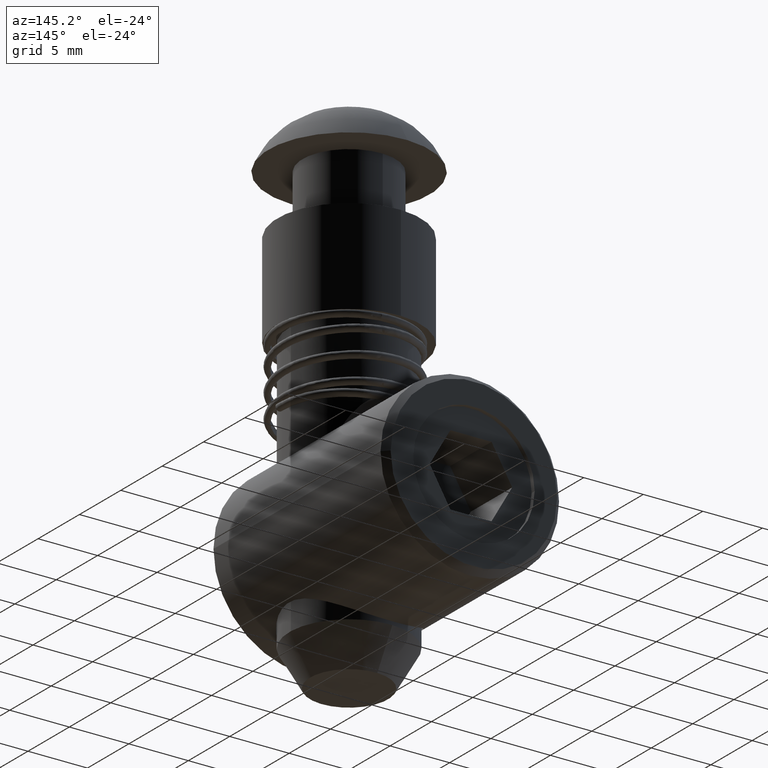
[diagram: clean part render]
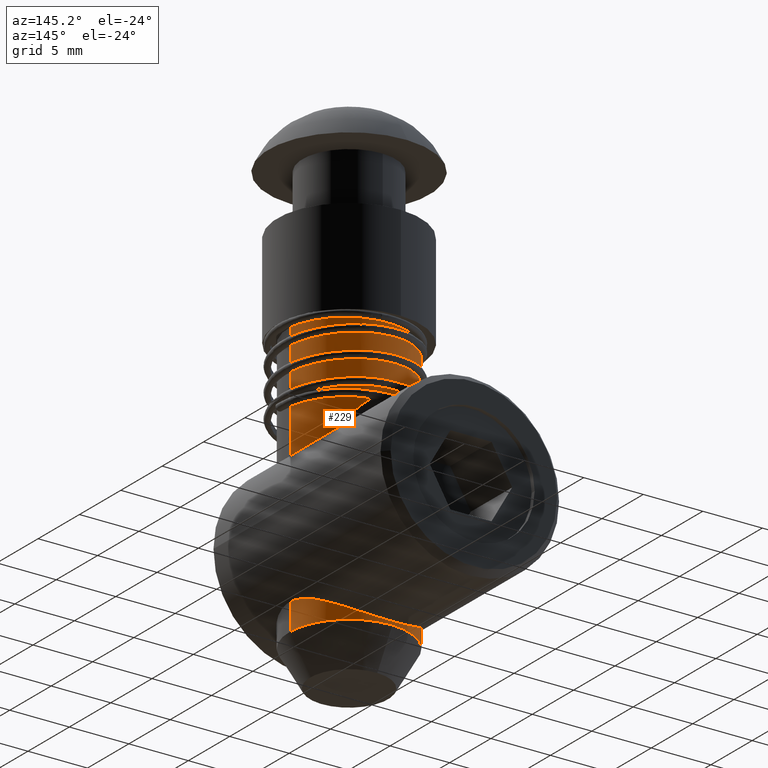
[diagram: same view with one face highlighted and labeled with its STEP entity id]
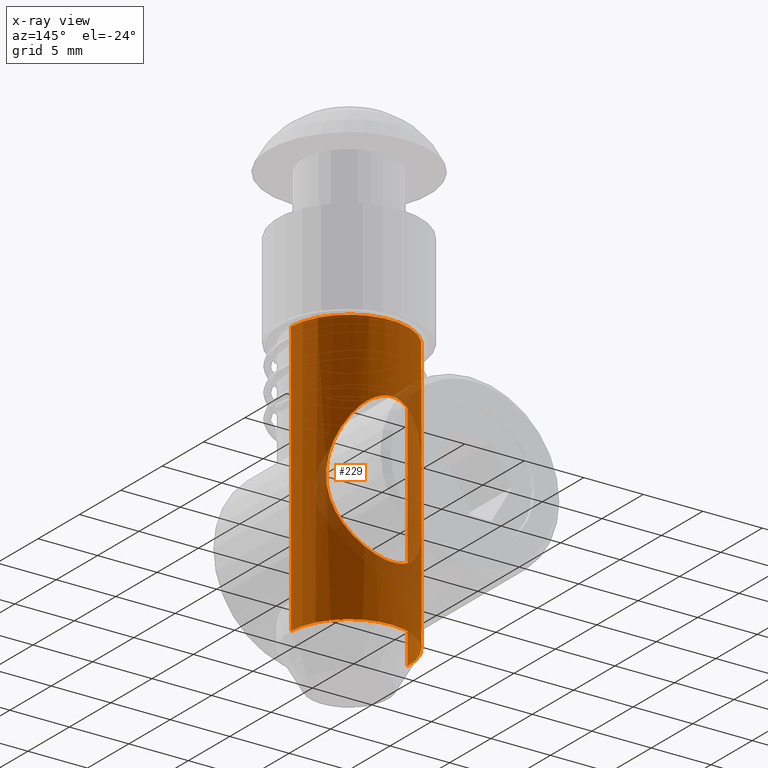
[diagram: x-ray of the same camera — body ghosted, the highlighted face saturated]
A machine part, auxiliary view. The second image highlights one B-rep face of the part: STEP entity #229.
The next image is the same camera in x-ray: the body ghosted, the highlighted face saturated — about 18% of this face is hidden behind the body in this view.
In plain terms, the highlighted cylindrical surface (partial cylindrical patch) has radius 5 mm, axis along (-0, -0, -1).
Its self-contained STEP definition (entity closure, byte-faithful):
#229 = ADVANCED_FACE ( 'NONE', ( #3277, #3279 ), #3280, .T. ) ;
#269 = VERTEX_POINT ( 'NONE', #1075 ) ;
#271 = VERTEX_POINT ( 'NONE', #1077 ) ;
#365 = AXIS2_PLACEMENT_3D ( 'NONE', #461, #462, #463 ) ;
#421 = AXIS2_PLACEMENT_3D ( 'NONE', #1566, #1567, #1568 ) ;
#422 = AXIS2_PLACEMENT_3D ( 'NONE', #1571, #1572, #1573 ) ;
#423 = AXIS2_PLACEMENT_3D ( 'NONE', #1574, #1575, #1576 ) ;
#461 = CARTESIAN_POINT ( 'NONE',  ( 0.0000000000000000000, 0.0000000000000000000, -26.00000000000000400 ) ) ;
#462 = DIRECTION ( 'NONE',  ( 0.0000000000000000000, -3.469446951953614700E-016, 1.000000000000000000 ) ) ;
#463 = DIRECTION ( 'NONE',  ( 0.0000000000000000000, -1.000000000000000000, -6.938893903907228400E-016 ) ) ;
#1075 = CARTESIAN_POINT ( 'NONE',  ( 5.000000000000000000, 7.654042494670978300E-016, -7.750000000000000000 ) ) ;
#1077 = CARTESIAN_POINT ( 'NONE',  ( 5.000000000000000000, -7.068193710780265800E-025, -20.25000000000000000 ) ) ;
#1475 = CARTESIAN_POINT ( 'NONE',  ( 5.000000000000000000, 7.654042494670978300E-016, -7.750000000000000000 ) ) ;
#1476 = CARTESIAN_POINT ( 'NONE',  ( 4.999999999780595900, -0.1813539256800255400, -7.750000000092724900 ) ) ;
#1477 = CARTESIAN_POINT ( 'NONE',  ( 4.990176536131771800, -0.3587323774636953000, -7.767656787208031800 ) ) ;
#1478 = CARTESIAN_POINT ( 'NONE',  ( 4.952944911914106500, -0.7063196726305970300, -7.834886396920044400 ) ) ;
#1479 = CARTESIAN_POINT ( 'NONE',  ( 4.925180646177419200, -0.8780284513163030300, -7.885109100457018600 ) ) ;
#1480 = CARTESIAN_POINT ( 'NONE',  ( 4.854971580522522400, -1.207306635084960800, -8.013092839405493000 ) ) ;
#1481 = CARTESIAN_POINT ( 'NONE',  ( 4.813071113253514900, -1.363365291101220200, -8.089866630655743400 ) ) ;
#1482 = CARTESIAN_POINT ( 'NONE',  ( 4.718543218857944600, -1.661255052658880100, -8.264901932709669600 ) ) ;
#1483 = CARTESIAN_POINT ( 'NONE',  ( 4.665497853343810100, -1.803884597647247100, -8.363960054311487400 ) ) ;
#1484 = CARTESIAN_POINT ( 'NONE',  ( 4.497595939086833600, -2.203431463297254900, -8.681816748362253500 ) ) ;
#1485 = CARTESIAN_POINT ( 'NONE',  ( 4.373615862092759000, -2.435431558020108700, -8.921763902899186900 ) ) ;
#1486 = CARTESIAN_POINT ( 'NONE',  ( 4.114987312465123300, -2.850740605737519300, -9.444660250977134900 ) ) ;
#1487 = CARTESIAN_POINT ( 'NONE',  ( 3.981295432993053200, -3.031591595720544600, -9.725847177536822500 ) ) ;
#1488 = CARTESIAN_POINT ( 'NONE',  ( 3.722260910837521300, -3.344552980544008000, -10.30814112247822000 ) ) ;
#1489 = CARTESIAN_POINT ( 'NONE',  ( 3.595708543822220700, -3.478218326949175800, -10.61150988995218100 ) ) ;
#1493 = CARTESIAN_POINT ( 'NONE',  ( 3.359032755661645700, -3.707293029750056100, -11.24352797974041000 ) ) ;
#1494 = CARTESIAN_POINT ( 'NONE',  ( 3.248674086339969200, -3.802675491264376500, -11.57375450399950100 ) ) ;
#1495 = CARTESIAN_POINT ( 'NONE',  ( 3.063671671721330800, -3.953244249855025300, -12.24256927419087400 ) ) ;
#1496 = CARTESIAN_POINT ( 'NONE',  ( 2.988161145186147800, -4.009371323402223000, -12.58334038542380800 ) ) ;
#1497 = CARTESIAN_POINT ( 'NONE',  ( 2.909797683405974200, -4.066216767620159300, -13.10568953345283900 ) ) ;
#1498 = CARTESIAN_POINT ( 'NONE',  ( 2.889500077455455800, -4.080572425759808800, -13.28167814123880700 ) ) ;
#1499 = CARTESIAN_POINT ( 'NONE',  ( 2.862024463334252600, -4.099889997397813300, -13.63772397306970800 ) ) ;
#1500 = CARTESIAN_POINT ( 'NONE',  ( 2.854924826465985900, -4.104802582685571200, -13.81850916212441800 ) ) ;
#1501 = CARTESIAN_POINT ( 'NONE',  ( 2.854710200515739400, -4.104951851294623900, -14.35462300157099800 ) ) ;
#1502 = CARTESIAN_POINT ( 'NONE',  ( 2.882348555656721400, -4.086091165984679900, -14.70733032686790200 ) ) ;
#1503 = CARTESIAN_POINT ( 'NONE',  ( 2.985717609988218800, -4.011179946903487400, -15.40424062315920400 ) ) ;
#1504 = CARTESIAN_POINT ( 'NONE',  ( 3.061970090542228900, -3.954587255382542300, -15.75076082219521600 ) ) ;
#1505 = CARTESIAN_POINT ( 'NONE',  ( 3.341449757898272000, -3.727250769491944100, -16.76267327086891600 ) ) ;
#1506 = CARTESIAN_POINT ( 'NONE',  ( 3.588041774297051800, -3.506151257356175500, -17.38958064694837800 ) ) ;
#1507 = CARTESIAN_POINT ( 'NONE',  ( 3.979466396959225000, -3.034078492534864900, -18.27031765165181900 ) ) ;
#1508 = CARTESIAN_POINT ( 'NONE',  ( 4.113247935895667100, -2.853129644913522200, -18.55169326240846700 ) ) ;
#1509 = CARTESIAN_POINT ( 'NONE',  ( 4.306375102356669000, -2.543604296271567900, -18.94235161011844000 ) ) ;
#1510 = CARTESIAN_POINT ( 'NONE',  ( 4.369719974337519900, -2.433765210095105500, -19.06779307413858500 ) ) ;
#1511 = CARTESIAN_POINT ( 'NONE',  ( 4.492848615000423400, -2.198175851628424200, -19.30780748429313200 ) ) ;
#1512 = CARTESIAN_POINT ( 'NONE',  ( 4.552859553530146800, -2.071782960314438900, -19.42279158041064900 ) ) ;
#1513 = CARTESIAN_POINT ( 'NONE',  ( 4.664746149283678800, -1.805812313493044400, -19.63462847578515300 ) ) ;
#1514 = CARTESIAN_POINT ( 'NONE',  ( 4.716942219420497300, -1.665758765395755300, -19.73211504179055000 ) ) ;
#1515 = CARTESIAN_POINT ( 'NONE',  ( 4.811540238588405000, -1.368713519436763200, -19.90731656783761100 ) ) ;
#1516 = CARTESIAN_POINT ( 'NONE',  ( 4.854249550018663800, -1.210091686698612900, -19.98558498154820700 ) ) ;
#1517 = CARTESIAN_POINT ( 'NONE',  ( 4.924356219453382100, -0.8824830921917322700, -20.11339391903938900 ) ) ;
#1518 = CARTESIAN_POINT ( 'NONE',  ( 4.952015127386420800, -0.7132330027266188300, -20.16343247648983400 ) ) ;
#1519 = CARTESIAN_POINT ( 'NONE',  ( 4.989981939787442800, -0.3622642386953579500, -20.23199396648728800 ) ) ;
#1520 = CARTESIAN_POINT ( 'NONE',  ( 4.999999999980931700, -0.1812235612374701000, -20.24999999996567000 ) ) ;
#1521 = CARTESIAN_POINT ( 'NONE',  ( 5.000000000000000000, -7.068193710780265800E-025, -20.25000000000000000 ) ) ;
#1522 = CARTESIAN_POINT ( 'NONE',  ( 5.000000000000000000, -7.068193710780265800E-025, -20.25000000000000000 ) ) ;
#1523 = CARTESIAN_POINT ( 'NONE',  ( 5.000000000019081600, 0.1813539229294693100, -20.25000000003434400 ) ) ;
#1524 = CARTESIAN_POINT ( 'NONE',  ( 4.990176536326965900, 0.3587323747931316900, -20.23234321314339500 ) ) ;
#1525 = CARTESIAN_POINT ( 'NONE',  ( 4.952944912269415100, 0.7063196701617632200, -20.16511360372258500 ) ) ;
#1526 = CARTESIAN_POINT ( 'NONE',  ( 4.925180646597860700, 0.8780284489764665900, -20.11489090030575300 ) ) ;
#1527 = CARTESIAN_POINT ( 'NONE',  ( 4.854971581052647700, 1.207306632966670400, -19.98690716156451300 ) ) ;
#1528 = CARTESIAN_POINT ( 'NONE',  ( 4.813071113824031000, 1.363365289099205000, -19.91013337039374400 ) ) ;
#1529 = CARTESIAN_POINT ( 'NONE',  ( 4.718543219482422800, 1.661255050895048100, -19.73509806845359500 ) ) ;
#1530 = CARTESIAN_POINT ( 'NONE',  ( 4.665497853982948600, 1.803884596001124500, -19.63603994688805400 ) ) ;
#1531 = CARTESIAN_POINT ( 'NONE',  ( 4.497595939759605700, 2.203431461946677100, -19.31818325293222600 ) ) ;
#1532 = CARTESIAN_POINT ( 'NONE',  ( 4.373615862750486200, 2.435431556855987000, -19.07823609839606100 ) ) ;
#1533 = CARTESIAN_POINT ( 'NONE',  ( 4.114987313040263200, 2.850740604921869500, -18.55533975022024500 ) ) ;
#1534 = CARTESIAN_POINT ( 'NONE',  ( 3.981295433544695900, 3.031591595003645600, -18.27415282365316400 ) ) ;
#1535 = CARTESIAN_POINT ( 'NONE',  ( 3.722260911294676100, 3.344552980042076100, -17.69185887859952500 ) ) ;
#1536 = CARTESIAN_POINT ( 'NONE',  ( 3.595708544217807800, 3.478218326545404100, -17.38849011103952700 ) ) ;
#1537 = CARTESIAN_POINT ( 'NONE',  ( 3.359032755920615500, 3.707293029520272000, -16.75647202101583100 ) ) ;
#1538 = CARTESIAN_POINT ( 'NONE',  ( 3.248674086553196000, 3.802675491084110100, -16.42624549668843800 ) ) ;
#1539 = CARTESIAN_POINT ( 'NONE',  ( 3.063671671846937000, 3.953244249759509700, -15.75743072634616300 ) ) ;
#1540 = CARTESIAN_POINT ( 'NONE',  ( 2.988161145261320200, 4.009371323346932100, -15.41665961499801800 ) ) ;
#1541 = CARTESIAN_POINT ( 'NONE',  ( 2.909797683425705100, 4.066216767606214900, -14.89431046671835900 ) ) ;
#1542 = CARTESIAN_POINT ( 'NONE',  ( 2.889500077460276400, 4.080572425756424900, -14.71832185883579000 ) ) ;
#1543 = CARTESIAN_POINT ( 'NONE',  ( 2.862024463323700600, 4.099889997405211000, -14.36227602678153500 ) ) ;
#1544 = CARTESIAN_POINT ( 'NONE',  ( 2.854924826460748700, 4.104802582689205600, -14.18149083767992400 ) ) ;
#1545 = CARTESIAN_POINT ( 'NONE',  ( 2.854710200525957900, 4.104951851287506900, -13.64537699821809700 ) ) ;
#1546 = CARTESIAN_POINT ( 'NONE',  ( 2.882348555679509000, 4.086091165969262900, -13.29266967285776800 ) ) ;
#1547 = CARTESIAN_POINT ( 'NONE',  ( 2.985717610078862700, 4.011179946836687500, -12.59575937635031000 ) ) ;
#1548 = CARTESIAN_POINT ( 'NONE',  ( 3.061970090711856800, 3.954587255252843800, -12.24923917708759400 ) ) ;
#1549 = CARTESIAN_POINT ( 'NONE',  ( 3.341449758182428700, 3.727250769244207200, -11.23732672830822600 ) ) ;
#1550 = CARTESIAN_POINT ( 'NONE',  ( 3.588041774690186300, 3.506151256990286400, -10.61041935205861400 ) ) ;
#1551 = CARTESIAN_POINT ( 'NONE',  ( 3.979466397571770600, 3.034078491741976100, -9.729682347024116500 ) ) ;
#1552 = CARTESIAN_POINT ( 'NONE',  ( 4.113247936507413300, 2.853129644043093500, -9.448306736318624400 ) ) ;
#1553 = CARTESIAN_POINT ( 'NONE',  ( 4.306375103001498100, 2.543604295183081700, -9.057648388594932600 ) ) ;
#1554 = CARTESIAN_POINT ( 'NONE',  ( 4.369719974994055200, 2.433765208921648200, -8.932206924567358500 ) ) ;
#1555 = CARTESIAN_POINT ( 'NONE',  ( 4.492848615679441200, 2.198175850246474500, -8.692192514397516900 ) ) ;
#1556 = CARTESIAN_POINT ( 'NONE',  ( 4.552859554204426100, 2.071782958837791200, -8.577208418302179300 ) ) ;
#1557 = CARTESIAN_POINT ( 'NONE',  ( 4.664746149924845000, 1.805812311842658600, -8.365371523011463100 ) ) ;
#1558 = CARTESIAN_POINT ( 'NONE',  ( 4.716942220043740100, 1.665758763641833800, -8.267884957048197600 ) ) ;
#1559 = CARTESIAN_POINT ( 'NONE',  ( 4.811540239165093000, 1.368713517422783400, -8.092683431101290700 ) ) ;
#1560 = CARTESIAN_POINT ( 'NONE',  ( 4.854249550558561700, 1.210091684542417900, -8.014415017463838000 ) ) ;
#1561 = CARTESIAN_POINT ( 'NONE',  ( 4.924356219872211500, 0.8824830898677826800, -7.886606080200727400 ) ) ;
#1562 = CARTESIAN_POINT ( 'NONE',  ( 4.952015127741583800, 0.7132330002940670000, -7.836567522867723800 ) ) ;
#1563 = CARTESIAN_POINT ( 'NONE',  ( 4.989981939989701400, 0.3622642359750573000, -7.768006033148543200 ) ) ;
#1564 = CARTESIAN_POINT ( 'NONE',  ( 4.999999999946495200, 0.1814843776279297900, -7.749999999794104300 ) ) ;
#1565 = CARTESIAN_POINT ( 'NONE',  ( 5.000000000000000000, 7.654042494670978300E-016, -7.750000000000000000 ) ) ;
#1566 = CARTESIAN_POINT ( 'NONE',  ( 0.0000000000000000000, -1.080851486287987400E-040, -26.00000000000000400 ) ) ;
#1567 = DIRECTION ( 'NONE',  ( -0.0000000000000000000, 3.469446951953614700E-016, -1.000000000000000000 ) ) ;
#1568 = DIRECTION ( 'NONE',  ( 0.0000000000000000000, -1.000000000000000000, -6.938893903907228400E-016 ) ) ;
#1569 = CARTESIAN_POINT ( 'NONE',  ( 6.123233995736766300E-016, 5.000000000000000000, -26.00000000000000000 ) ) ;
#1570 = DIRECTION ( 'NONE',  ( 0.0000000000000000000, -3.469446951953614700E-016, 1.000000000000000000 ) ) ;
#1571 = CARTESIAN_POINT ( 'NONE',  ( 0.0000000000000000000, 0.0000000000000000000, -2.999999999999999100 ) ) ;
#1572 = DIRECTION ( 'NONE',  ( 0.0000000000000000000, 0.0000000000000000000, 1.000000000000000000 ) ) ;
#1573 = DIRECTION ( 'NONE',  ( 1.000000000000000000, 0.0000000000000000000, -1.734723475976807100E-016 ) ) ;
#1574 = CARTESIAN_POINT ( 'NONE',  ( 0.0000000000000000000, 0.0000000000000000000, -2.999999999999999100 ) ) ;
#1575 = DIRECTION ( 'NONE',  ( 0.0000000000000000000, 0.0000000000000000000, 1.000000000000000000 ) ) ;
#1576 = DIRECTION ( 'NONE',  ( 1.000000000000000000, 0.0000000000000000000, -1.734723475976807100E-016 ) ) ;
#1577 = CARTESIAN_POINT ( 'NONE',  ( 0.0000000000000000000, -5.000000000000000000, -26.00000000000000700 ) ) ;
#1578 = DIRECTION ( 'NONE',  ( 0.0000000000000000000, -3.469446951953614700E-016, 1.000000000000000000 ) ) ;
#2014 = CARTESIAN_POINT ( 'NONE',  ( 6.123233995736772200E-016, 5.000000000000000000, -26.00000000000000400 ) ) ;
#2016 = CARTESIAN_POINT ( 'NONE',  ( 4.999999999999999100, 6.123233995736765300E-016, -2.999999999999999100 ) ) ;
#2020 = CARTESIAN_POINT ( 'NONE',  ( 0.0000000000000000000, -5.000000000000000000, -26.00000000000000700 ) ) ;
#2023 = CARTESIAN_POINT ( 'NONE',  ( 6.123233995736772200E-016, 5.000000000000000000, -2.999999999999999100 ) ) ;
#2027 = CARTESIAN_POINT ( 'NONE',  ( 0.0000000000000000000, -5.000000000000000000, -2.999999999999999100 ) ) ;
#2173 = ORIENTED_EDGE ( 'NONE', *, *, #2928, .F. ) ;
#2174 = ORIENTED_EDGE ( 'NONE', *, *, #2927, .F. ) ;
#2175 = ORIENTED_EDGE ( 'NONE', *, *, #2929, .F. ) ;
#2176 = ORIENTED_EDGE ( 'NONE', *, *, #2930, .T. ) ;
#2177 = ORIENTED_EDGE ( 'NONE', *, *, #2931, .F. ) ;
#2178 = ORIENTED_EDGE ( 'NONE', *, *, #2932, .F. ) ;
#2179 = ORIENTED_EDGE ( 'NONE', *, *, #2933, .F. ) ;
#2707 = LINE ( 'NONE', #1569, #2768 ) ;
#2708 = CIRCLE ( 'NONE', #421, 5.000000000000000000 ) ;
#2768 = VECTOR ( 'NONE', #1570, 1000.000000000000000 ) ;
#2770 = CIRCLE ( 'NONE', #422, 5.000000000000000000 ) ;
#2772 = LINE ( 'NONE', #1577, #2783 ) ;
#2774 = CIRCLE ( 'NONE', #423, 5.000000000000000000 ) ;
#2783 = VECTOR ( 'NONE', #1578, 1000.000000000000000 ) ;
#2927 = EDGE_CURVE ( 'NONE', #269, #271, #3562, .T. ) ;
#2928 = EDGE_CURVE ( 'NONE', #271, #269, #3563, .T. ) ;
#2929 = EDGE_CURVE ( 'NONE', #3465, #3471, #2708, .T. ) ;
#2930 = EDGE_CURVE ( 'NONE', #3465, #3474, #2707, .T. ) ;
#2931 = EDGE_CURVE ( 'NONE', #3467, #3474, #2770, .T. ) ;
#2932 = EDGE_CURVE ( 'NONE', #3478, #3467, #2774, .T. ) ;
#2933 = EDGE_CURVE ( 'NONE', #3471, #3478, #2772, .T. ) ;
#3151 = EDGE_LOOP ( 'NONE', ( #2175, #2176, #2177, #2178, #2179 ) ) ;
#3157 = EDGE_LOOP ( 'NONE', ( #2173, #2174 ) ) ;
#3277 = FACE_BOUND ( 'NONE', #3157, .T. ) ;
#3279 = FACE_OUTER_BOUND ( 'NONE', #3151, .T. ) ;
#3280 = CYLINDRICAL_SURFACE ( 'NONE', #365, 5.000000000000000000 ) ;
#3465 = VERTEX_POINT ( 'NONE', #2014 ) ;
#3467 = VERTEX_POINT ( 'NONE', #2016 ) ;
#3471 = VERTEX_POINT ( 'NONE', #2020 ) ;
#3474 = VERTEX_POINT ( 'NONE', #2023 ) ;
#3478 = VERTEX_POINT ( 'NONE', #2027 ) ;
#3562 = B_SPLINE_CURVE_WITH_KNOTS ( 'NONE', 3,
 ( #1475, #1476, #1477, #1478, #1479, #1480, #1481, #1482, #1483, #1484, #1485, #1486, #1487, #1488, #1489, #1493, #1494, #1495, #1496, #1497, #1498, #1499, #1500, #1501, #1502, #1503, #1504, #1505, #1506, #1507, #1508, #1509, #1510, #1511, #1512, #1513, #1514, #1515, #1516, #1517, #1518, #1519, #1520, #1521 ),
 .UNSPECIFIED., .F., .F.,
 ( 4, 2, 2, 2, 2, 2, 2, 2, 2, 2, 2, 2, 2, 2, 2, 2, 2, 2, 2, 2, 2, 4 ),
 ( 0.0000000000000000000, 0.0005338272270294280900, 0.001067654454058855700, 0.001601481681088282600, 0.002135308908117709800, 0.003202963362176561400, 0.004270617816235413400, 0.005338272270294265100, 0.006405926724353118400, 0.007473581178411970100, 0.008007408405441399800, 0.008541235632470826900, 0.009608890086529682900, 0.01067654454058853900, 0.01281185344870625400, 0.01387950790276511200, 0.01441333512979454100, 0.01494716235682397100, 0.01548098958385340200, 0.01601481681088283100, 0.01654864403791226100, 0.01708247126494169200 ),
 .UNSPECIFIED. ) ;
#3563 = B_SPLINE_CURVE_WITH_KNOTS ( 'NONE', 3,
 ( #1522, #1523, #1524, #1525, #1526, #1527, #1528, #1529, #1530, #1531, #1532, #1533, #1534, #1535, #1536, #1537, #1538, #1539, #1540, #1541, #1542, #1543, #1544, #1545, #1546, #1547, #1548, #1549, #1550, #1551, #1552, #1553, #1554, #1555, #1556, #1557, #1558, #1559, #1560, #1561, #1562, #1563, #1564, #1565 ),
 .UNSPECIFIED., .F., .F.,
 ( 4, 2, 2, 2, 2, 2, 2, 2, 2, 2, 2, 2, 2, 2, 2, 2, 2, 2, 2, 2, 2, 4 ),
 ( 0.01708247126494169200, 0.01761668249933707300, 0.01815089373373245800, 0.01868510496812783900, 0.01921931620252322100, 0.02028773867131398000, 0.02135616114010473900, 0.02242458360889549400, 0.02349300607768625400, 0.02456142854647701300, 0.02509563978087239100, 0.02562985101526777200, 0.02669827348405853100, 0.02776669595284929000, 0.02990354089043080500, 0.03097196335922156700, 0.03150617459361694500, 0.03204038582801233000, 0.03257459706240770800, 0.03310880829680308600, 0.03364301953119847000, 0.03417723076559384800 ),
 .UNSPECIFIED. ) ;